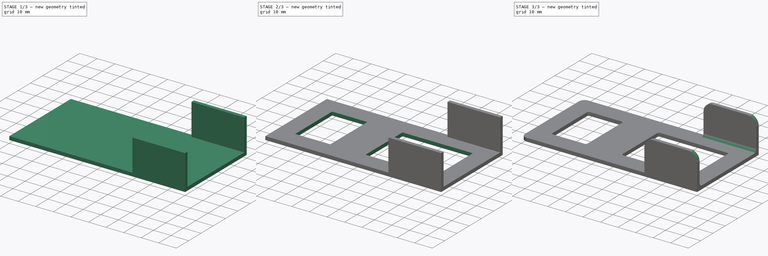
[diagram: build sequence overview — one tinted view per stage of 3, left to right]
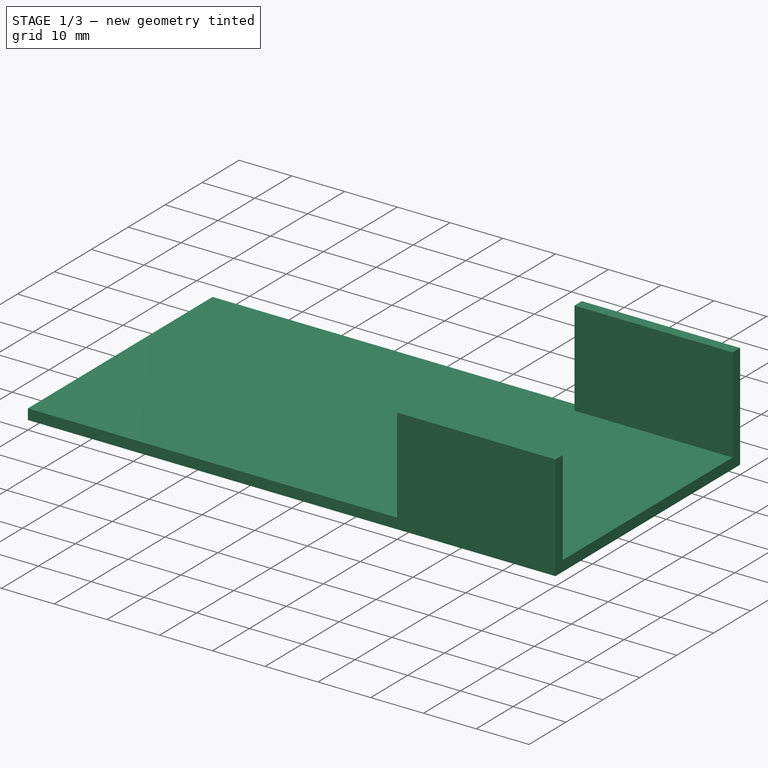
[diagram: stage 1 of 3 — iso view after this stage's code; geometry added in this stage tinted green]
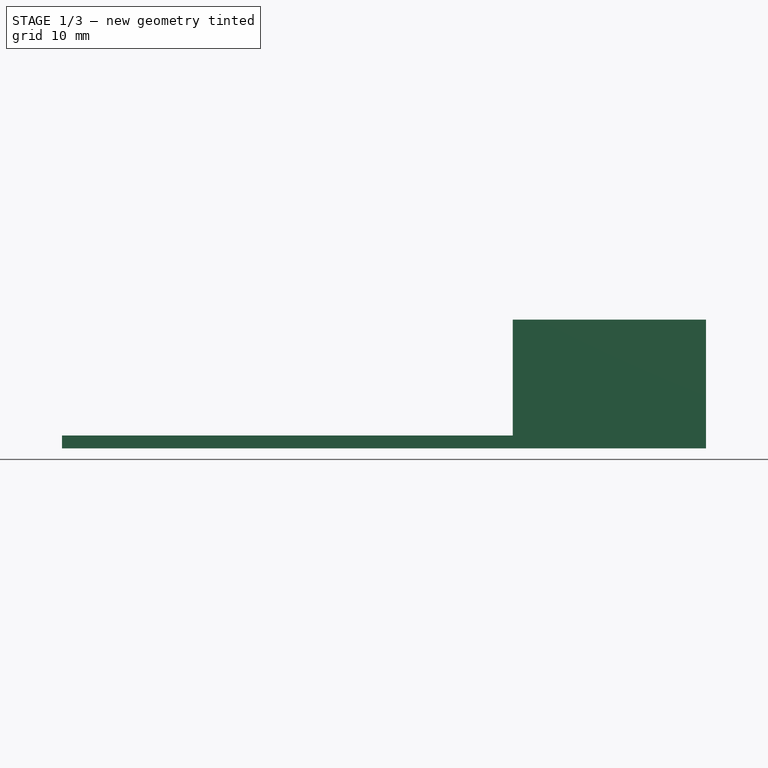
[diagram: stage 1 of 3 — front view after this stage's code; geometry added in this stage tinted green]
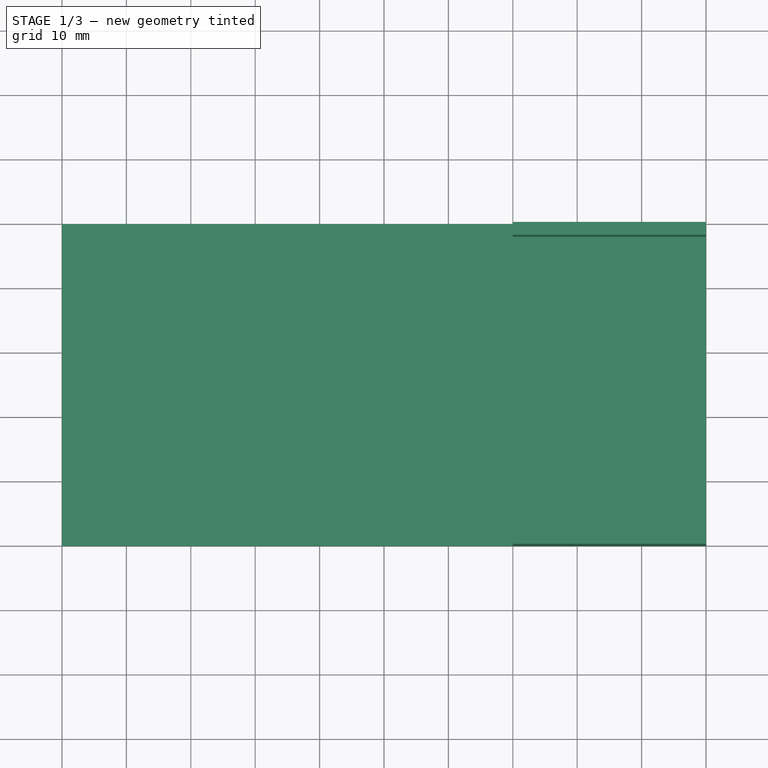
[diagram: stage 1 of 3 — top view after this stage's code; geometry added in this stage tinted green]
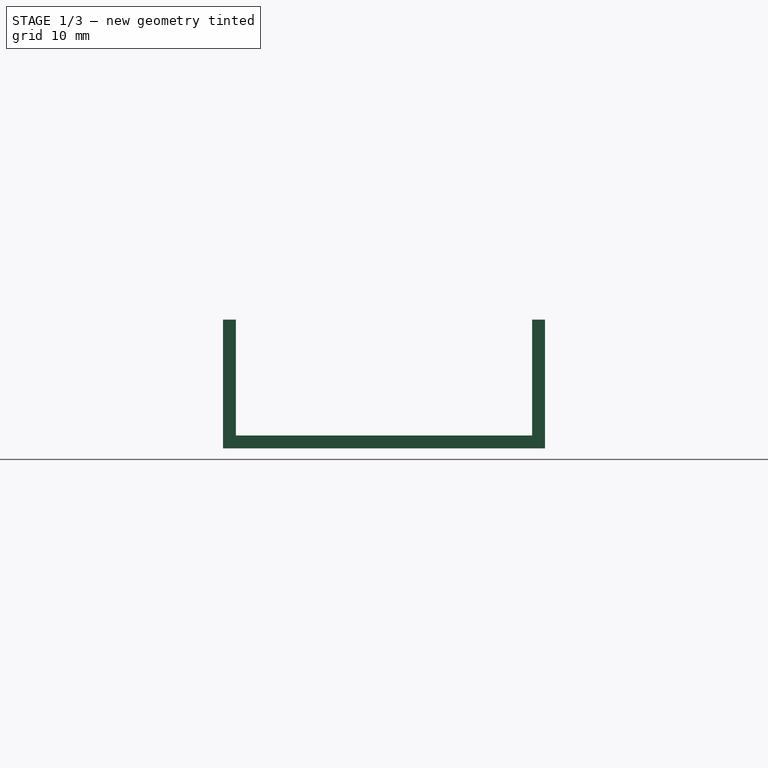
[diagram: stage 1 of 3 — right view after this stage's code; geometry added in this stage tinted green]
FCSTD DOCUMENT  (FreeCAD 0.16R6707 (Git))
Label: Base_estandar
License: CreativeCommons Attribution-ShareAlike
LicenseURL: http://creativecommons.org/licenses/by-sa/4.0/
objects: Part::Box×3, Part::Fillet×3, Part::MultiFuse×1, Sketcher::SketchObject×1, PartDesign::Pocket×1
note: 10 computed .brp shape members not serialized (recipe doc carries the construction recipe); baked Part::Feature solids carry a one-line shape summary decoded from their .brp

FEATURE [Part::Box] Box  label="Base"
  Height = 2
  Length = 100
  Width = 50
FEATURE [Part::Box] Box001  label="Aleta_DCH"
  Height = 20
  Length = 30
  Placement = pos=(70,0,0) rot=(0,0,1;0rad)
  Width = 2
FEATURE [Part::Box] Box002  label="Aleta_IZQ"
  Height = 20
  Length = 30
  Placement = pos=(70,48,0) rot=(0,0,1;0rad)
  Width = 2
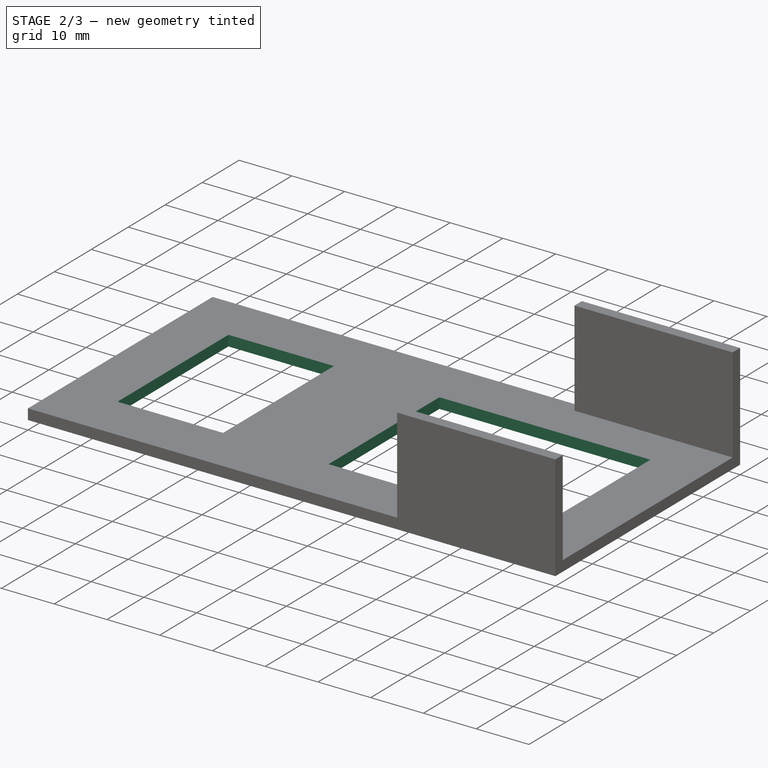
[diagram: stage 2 of 3 — iso view after this stage's code; geometry added in this stage tinted green]
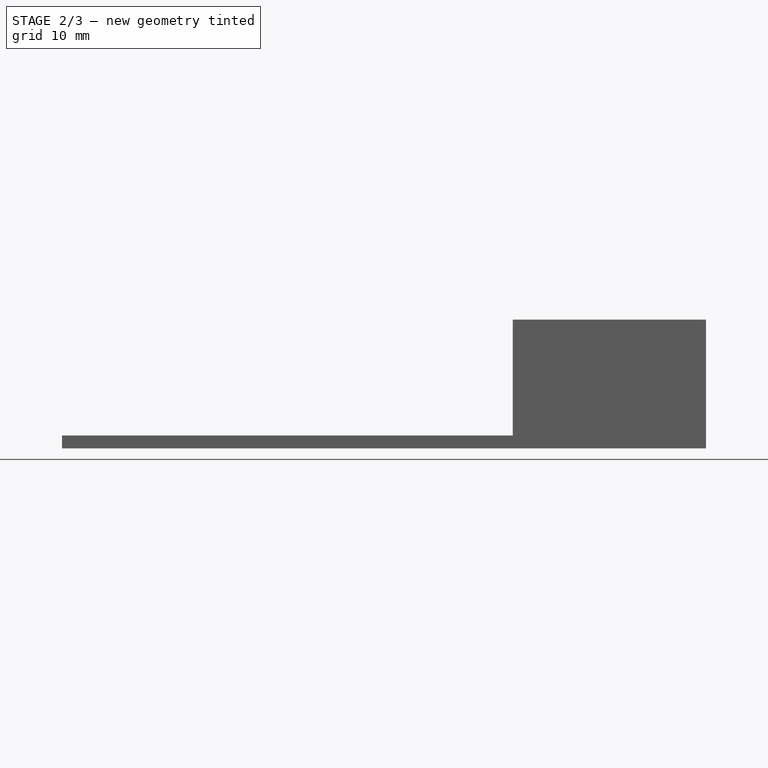
[diagram: stage 2 of 3 — front view after this stage's code; geometry added in this stage tinted green]
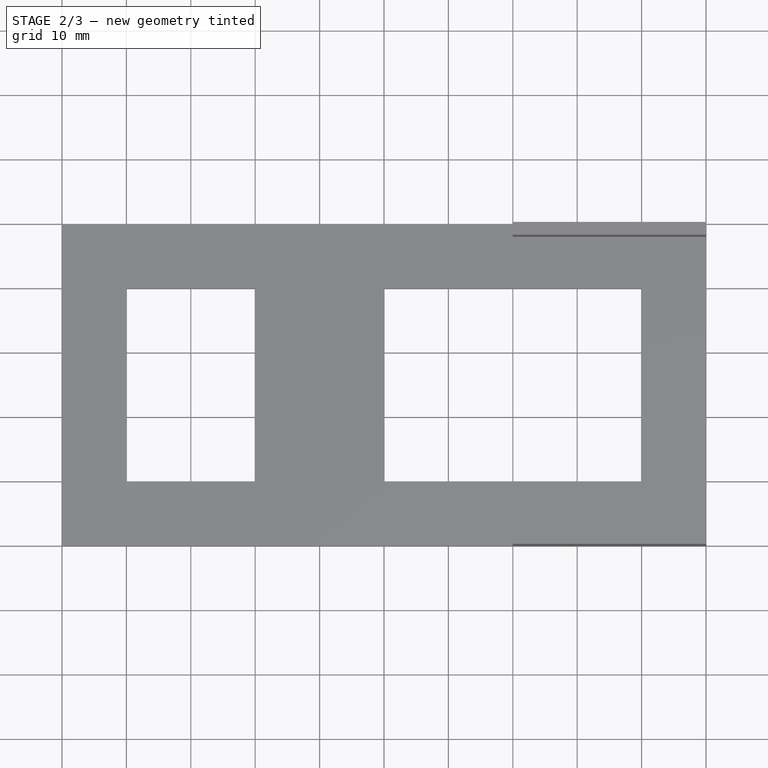
[diagram: stage 2 of 3 — top view after this stage's code; geometry added in this stage tinted green]
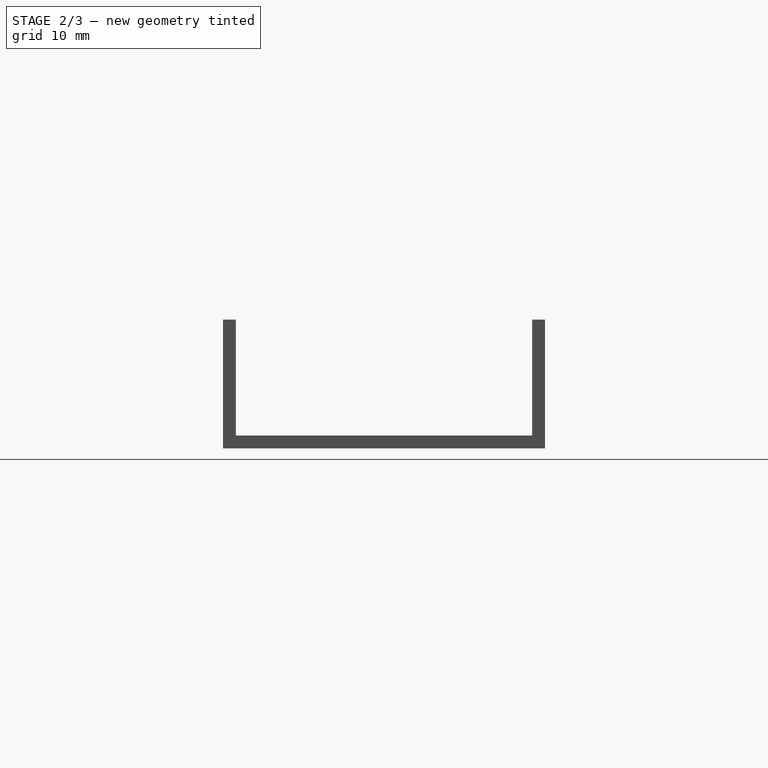
[diagram: stage 2 of 3 — right view after this stage's code; geometry added in this stage tinted green]
FEATURE [Part::MultiFuse] Fusion  label="Dobleces"
  Shapes = -> [Box,Box001,Box002]
FEATURE [Sketcher::SketchObject] Sketch
  Placement = pos=(0,0,2) rot=(0,0,1;0rad)
  Support = -> Fusion [Face4]
  sketch-geometry (8):
    g0: LineSegment StartX=10 StartY=10 StartZ=0 EndX=30 EndY=10 EndZ=0
    g1: LineSegment StartX=30 StartY=10 StartZ=0 EndX=30 EndY=40 EndZ=0
    g2: LineSegment StartX=30 StartY=40 StartZ=0 EndX=10 EndY=40 EndZ=0
    g3: LineSegment StartX=10 StartY=40 StartZ=0 EndX=10 EndY=10 EndZ=0
    g4: LineSegment StartX=50 StartY=10 StartZ=0 EndX=90 EndY=10 EndZ=0
    g5: LineSegment StartX=90 StartY=10 StartZ=0 EndX=90 EndY=40 EndZ=0
    g6: LineSegment StartX=90 StartY=40 StartZ=0 EndX=50 EndY=40 EndZ=0
    g7: LineSegment StartX=50 StartY=40 StartZ=0 EndX=50 EndY=10 EndZ=0
  constraints (24):
    c: Coincident(g0,g1)
    c: Coincident(g1,g2)
    c: Coincident(g2,g3)
    c: Coincident(g3,g0)
    c: Horizontal(g0)
    c: Horizontal(g2)
    c: Vertical(g1)
    c: Vertical(g3)
    c: Coincident(g4,g5)
    c: Coincident(g5,g6)
    c: Coincident(g6,g7)
    c: Coincident(g7,g4)
    c: Horizontal(g4)
    c: Horizontal(g6)
    c: Vertical(g5)
    c: Vertical(g7)
    c: DistanceY(g0,g2) = 30
    c: DistanceX(g2,g1) = 20
    c: DistanceX(g-1,g2) = 10
    c: DistanceY(g-1,g0) = 10
    c: DistanceX(g-1,g5) = 90
    c: DistanceY(g4,g6) = 30
    c: DistanceX(g6,g5) = 40
    c: DistanceY(g-1,g4) = 10
FEATURE [PartDesign::Pocket] Pocket  label="Vaciado"
  Length = 5
  Sketch = -> Sketch
  Type = 1
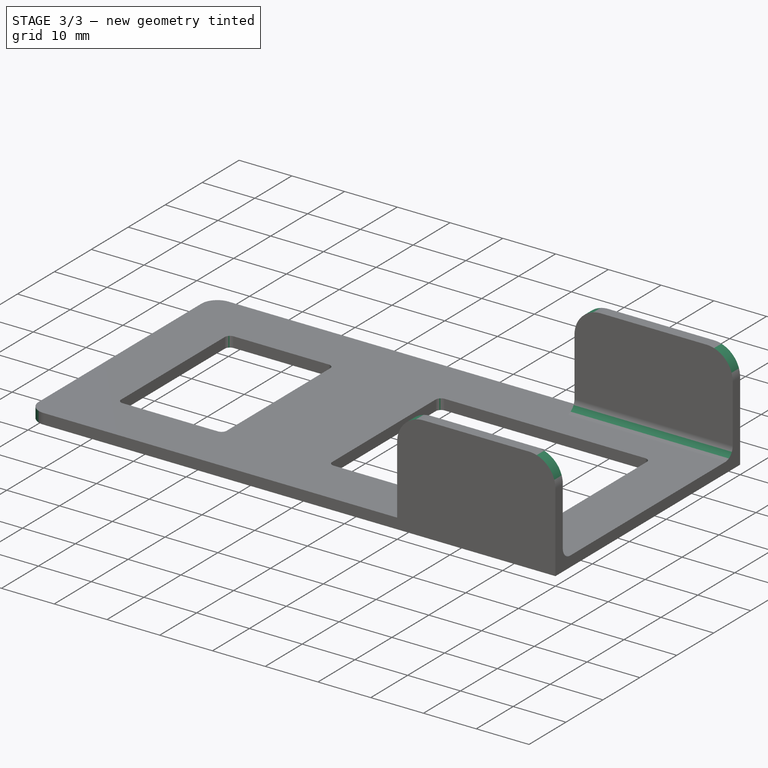
[diagram: stage 3 of 3 — iso view after this stage's code; geometry added in this stage tinted green]
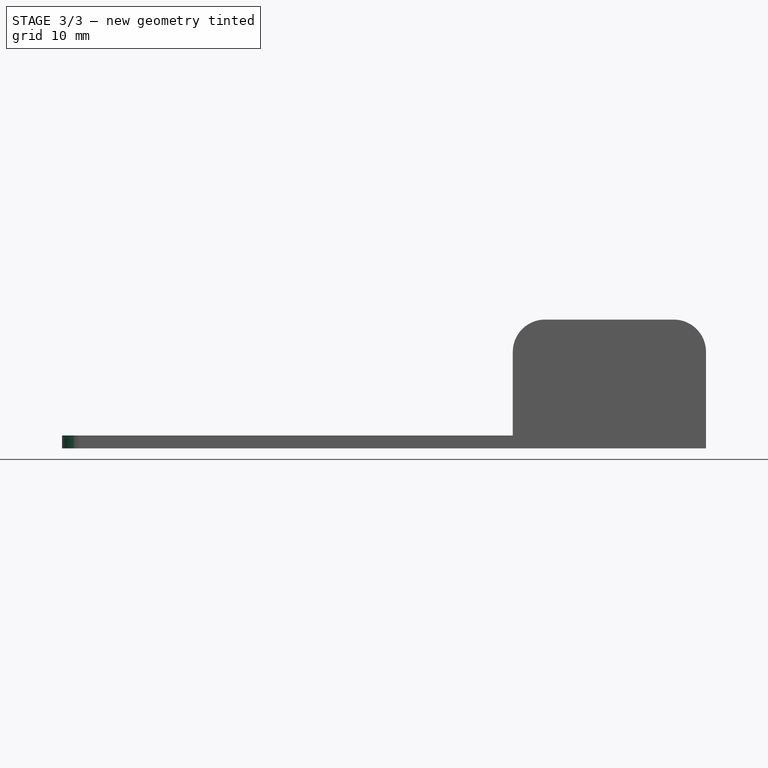
[diagram: stage 3 of 3 — front view after this stage's code; geometry added in this stage tinted green]
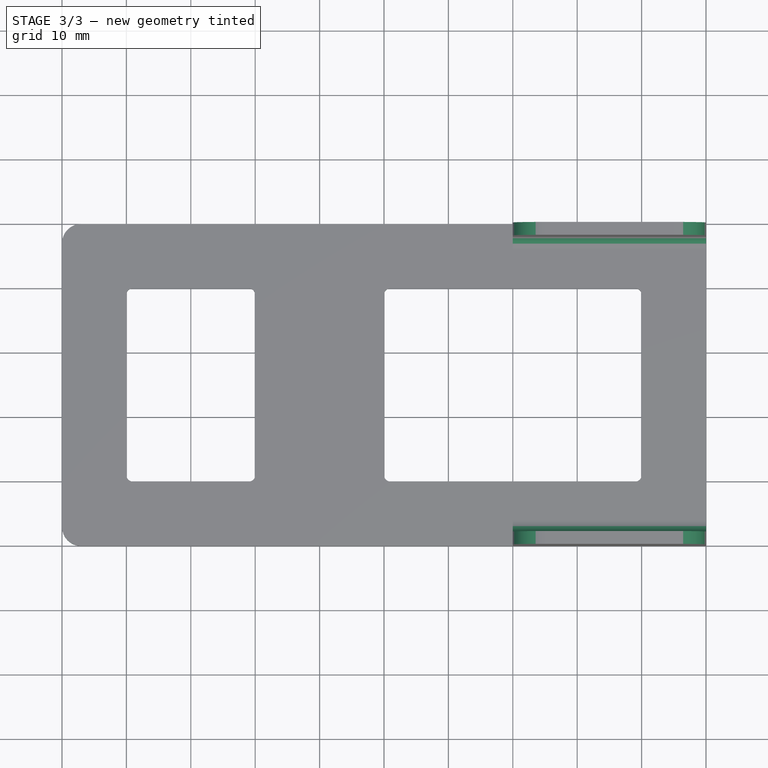
[diagram: stage 3 of 3 — top view after this stage's code; geometry added in this stage tinted green]
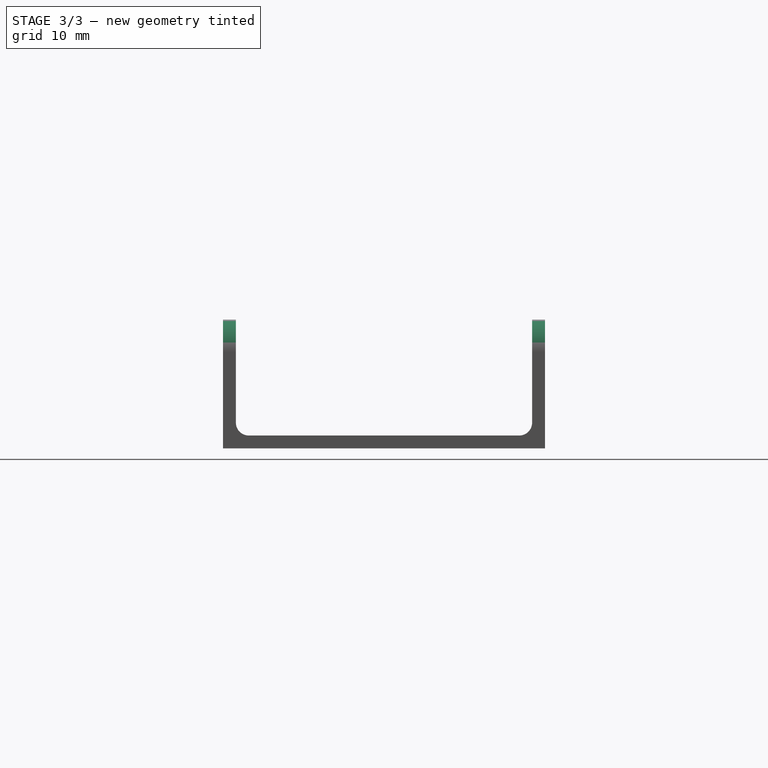
[diagram: stage 3 of 3 — right view after this stage's code; geometry added in this stage tinted green]
FEATURE [Part::Fillet] Fillet  label="Radios_3mm"
  Base = -> Pocket
  Edges = 10 edges: [Edge10 r=3,Edge41 r=3,Edge47 r=1,Edge48 r=1,Edge49 r=1,Edge50 r=1,Edge51 r=1,Edge52 r=1,Edge53 r=1,Edge54 r=1]
FEATURE [Part::Fillet] Fillet001  label="Radios_5mm"
  Base = -> Fillet
  Edges = 4 edges r=5: [Edge33,Edge35,Edge59,Edge84]
FEATURE [Part::Fillet] Fillet002  label="Refuerzos"
  Base = -> Fillet001
  Edges = 2 edges r=2: [Edge46,Edge49]
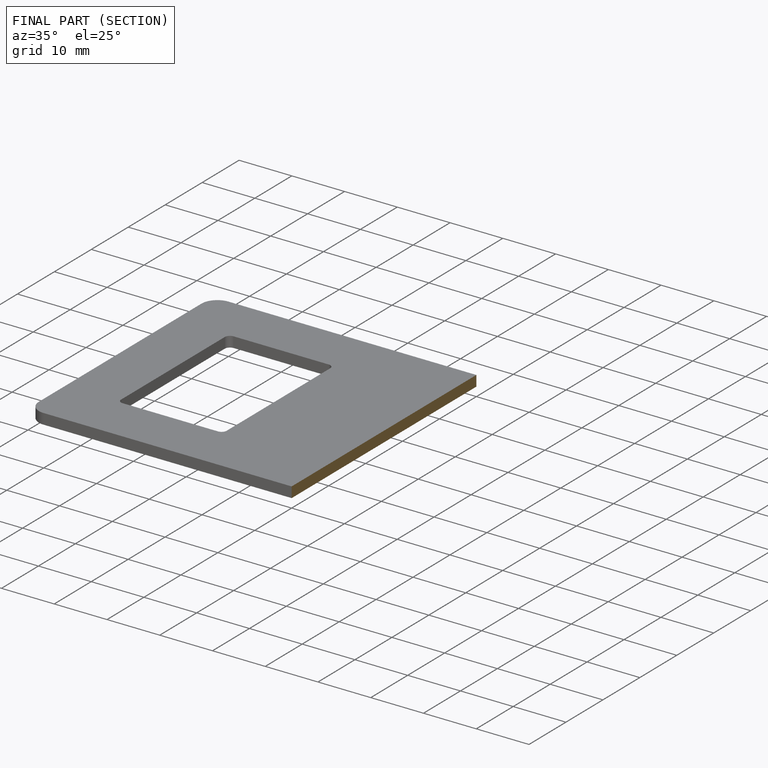
[diagram: finished part — half-section view (interior)]
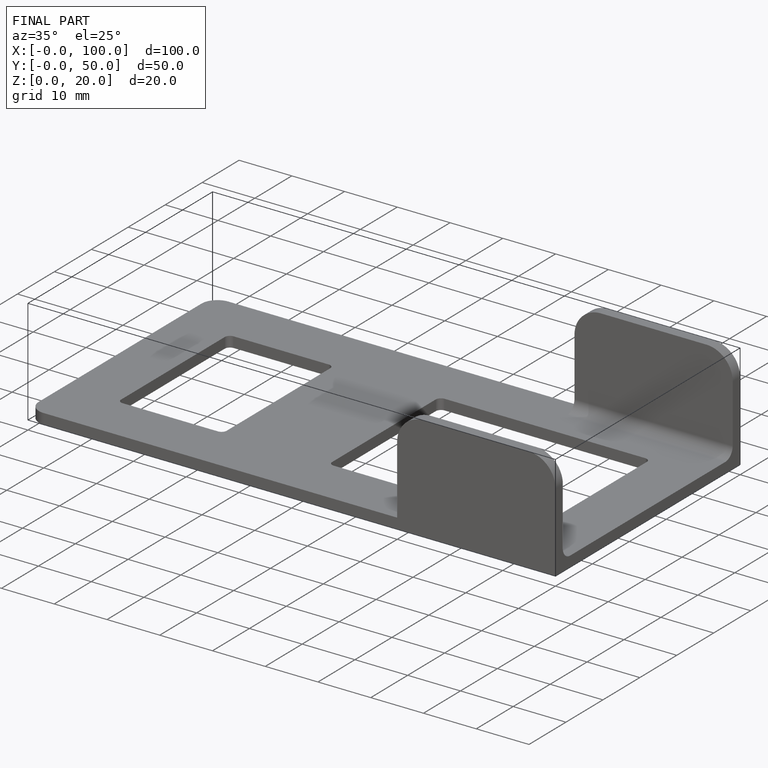
[diagram: finished part — iso view with bounding-box wireframe]
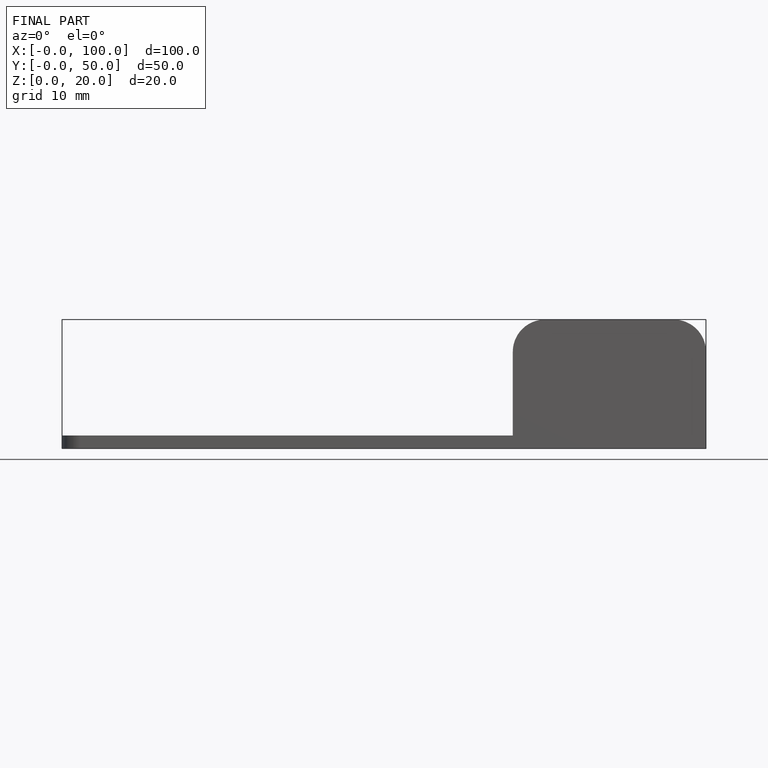
[diagram: finished part — front view with bounding-box wireframe]
